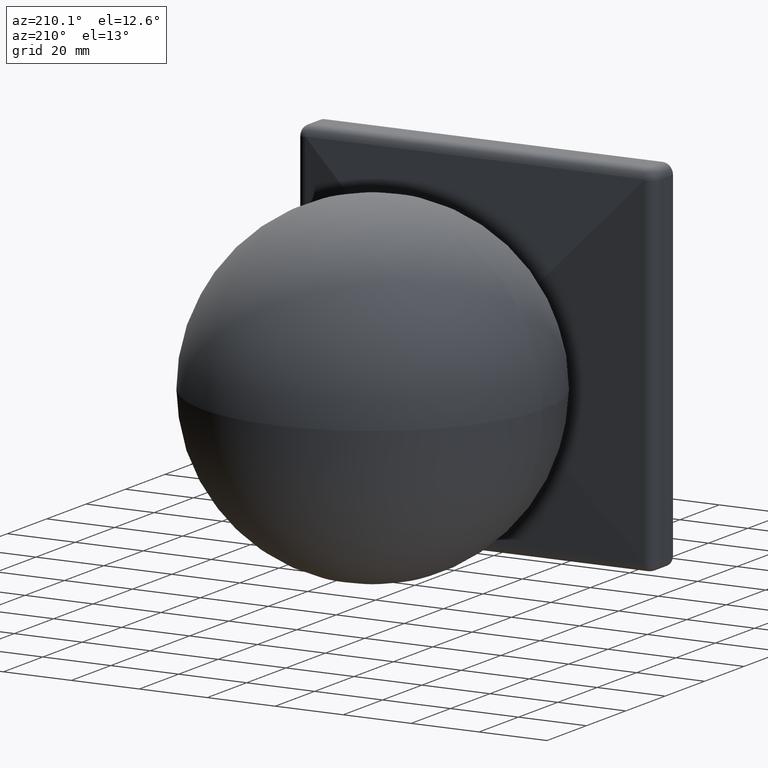
[diagram: clean part render]
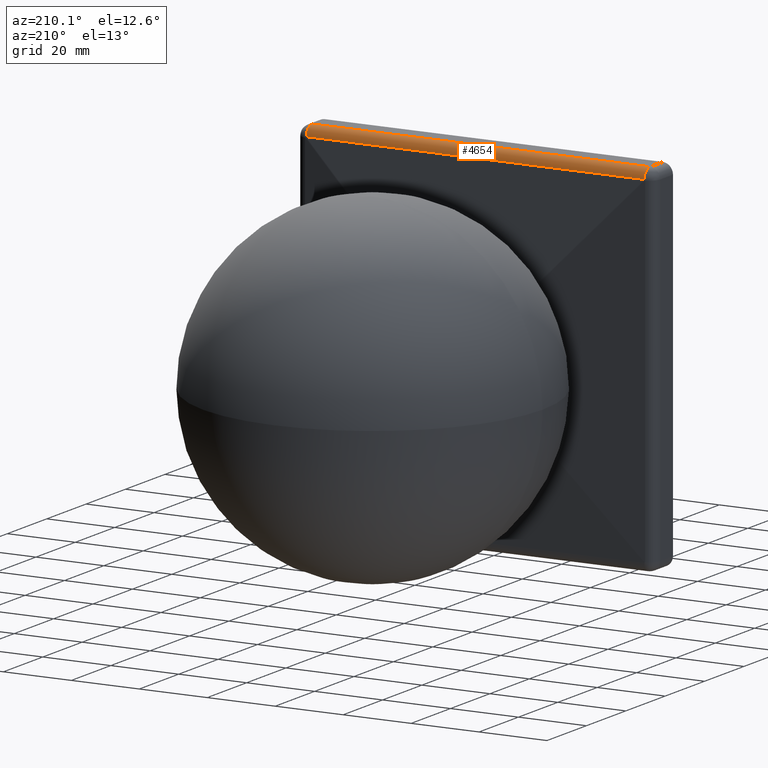
[diagram: same view with one face highlighted and labeled with its STEP entity id]
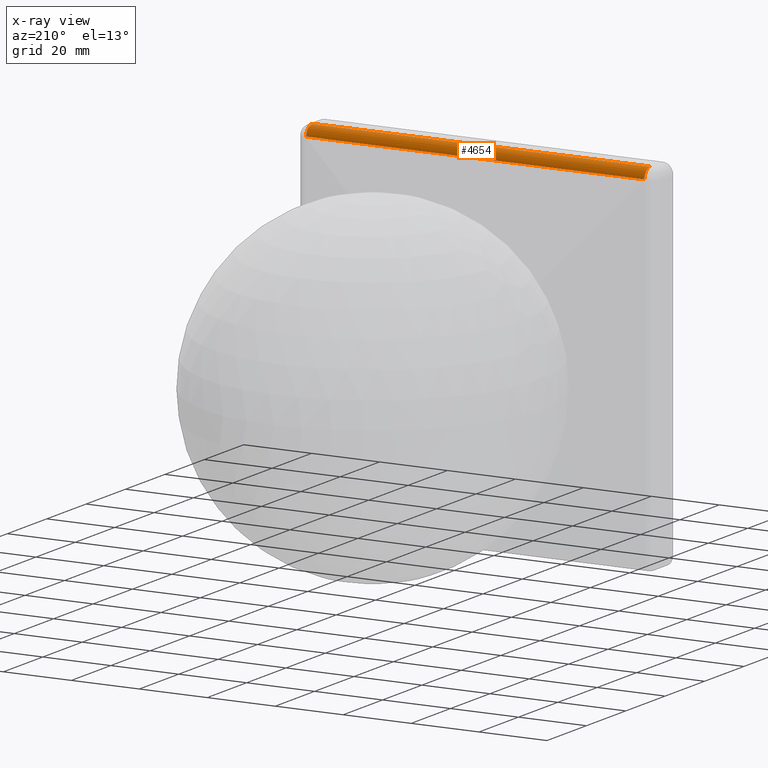
[diagram: x-ray of the same camera — body ghosted, the highlighted face saturated]
A machine part, auxiliary view. The second image highlights one B-rep face of the part: STEP entity #4654.
The next image is the same camera in x-ray: the body ghosted, the highlighted face saturated — about 0% of this face is hidden behind the body in this view.
In plain terms, the highlighted cylindrical surface (edge-blend (fillet) strip) has radius 3 mm, axis along (-1, -0, 0).
Its self-contained STEP definition (entity closure, byte-faithful):
#425 = FACE_OUTER_BOUND ( 'NONE', #15903, .T. ) ;
#648 = CARTESIAN_POINT ( 'NONE',  ( 52.75000000000004300, 6.500000000000000900, 49.75000000000000000 ) ) ;
#697 = CARTESIAN_POINT ( 'NONE',  ( 52.75000000000004300, 6.500000000000000900, 52.75000000000000700 ) ) ;
#905 = ORIENTED_EDGE ( 'NONE', *, *, #10148, .T. ) ;
#1364 = LINE ( 'NONE', #697, #2820 ) ;
#1762 = DIRECTION ( 'NONE',  ( 1.000000000000000000, 0.0000000000000000000, -2.220446049250313100E-016 ) ) ;
#2087 = CARTESIAN_POINT ( 'NONE',  ( -49.74999999999996400, 6.500000000000000900, 52.75000000000002800 ) ) ;
#2307 = CIRCLE ( 'NONE', #7975, 3.000000000000002700 ) ;
#2820 = VECTOR ( 'NONE', #12711, 1000.000000000000000 ) ;
#4654 = ADVANCED_FACE ( 'NONE', ( #425 ), #14663, .T. ) ;
#5136 = VERTEX_POINT ( 'NONE', #12337 ) ;
#5764 = CARTESIAN_POINT ( 'NONE',  ( 49.75000000000001400, 6.500000000000000900, 49.75000000000000000 ) ) ;
#5873 = DIRECTION ( 'NONE',  ( -1.000000000000000000, -0.0000000000000000000, 2.220446049250313100E-016 ) ) ;
#6014 = CARTESIAN_POINT ( 'NONE',  ( -49.75000000000002100, 6.500000000000000900, 49.75000000000002100 ) ) ;
#6383 = EDGE_CURVE ( 'NONE', #5136, #15576, #2307, .T. ) ;
#7825 = VECTOR ( 'NONE', #12380, 1000.000000000000000 ) ;
#7975 = AXIS2_PLACEMENT_3D ( 'NONE', #6014, #1762, #15193 ) ;
#8390 = CARTESIAN_POINT ( 'NONE',  ( 49.75000000000002100, 9.487802378961751200, 50.02025348151413900 ) ) ;
#10148 = EDGE_CURVE ( 'NONE', #15142, #15939, #11411, .T. ) ;
#10206 = CARTESIAN_POINT ( 'NONE',  ( 49.75000000000001400, 6.500000000000000900, 52.75000000000000700 ) ) ;
#11098 = EDGE_CURVE ( 'NONE', #15939, #5136, #13494, .T. ) ;
#11383 = EDGE_CURVE ( 'NONE', #15142, #15576, #1364, .T. ) ;
#11411 = CIRCLE ( 'NONE', #16887, 3.000000000000002700 ) ;
#11640 = DIRECTION ( 'NONE',  ( 0.0000000000000000000, 0.0000000000000000000, 1.000000000000000000 ) ) ;
#12337 = CARTESIAN_POINT ( 'NONE',  ( -49.75000000000002100, 9.487802378961751200, 50.02025348151416000 ) ) ;
#12380 = DIRECTION ( 'NONE',  ( -1.000000000000000000, -0.0000000000000000000, 2.220446049250313100E-016 ) ) ;
#12496 = DIRECTION ( 'NONE',  ( 0.0000000000000000000, 0.0000000000000000000, 1.000000000000000000 ) ) ;
#12711 = DIRECTION ( 'NONE',  ( -1.000000000000000000, -0.0000000000000000000, 2.220446049250313100E-016 ) ) ;
#12779 = DIRECTION ( 'NONE',  ( -1.000000000000000000, -0.0000000000000000000, 2.220446049250313100E-016 ) ) ;
#13265 = ORIENTED_EDGE ( 'NONE', *, *, #11383, .F. ) ;
#13494 = LINE ( 'NONE', #13980, #7825 ) ;
#13980 = CARTESIAN_POINT ( 'NONE',  ( 52.75000000000004300, 9.487802378961751200, 50.02025348151413900 ) ) ;
#14624 = ORIENTED_EDGE ( 'NONE', *, *, #6383, .T. ) ;
#14663 = CYLINDRICAL_SURFACE ( 'NONE', #16796, 3.000000000000002700 ) ;
#15142 = VERTEX_POINT ( 'NONE', #10206 ) ;
#15193 = DIRECTION ( 'NONE',  ( 0.0000000000000000000, -1.734723475976805500E-015, 1.000000000000000000 ) ) ;
#15576 = VERTEX_POINT ( 'NONE', #2087 ) ;
#15903 = EDGE_LOOP ( 'NONE', ( #13265, #905, #15979, #14624 ) ) ;
#15939 = VERTEX_POINT ( 'NONE', #8390 ) ;
#15979 = ORIENTED_EDGE ( 'NONE', *, *, #11098, .T. ) ;
#16796 = AXIS2_PLACEMENT_3D ( 'NONE', #648, #12779, #11640 ) ;
#16887 = AXIS2_PLACEMENT_3D ( 'NONE', #5764, #5873, #12496 ) ;